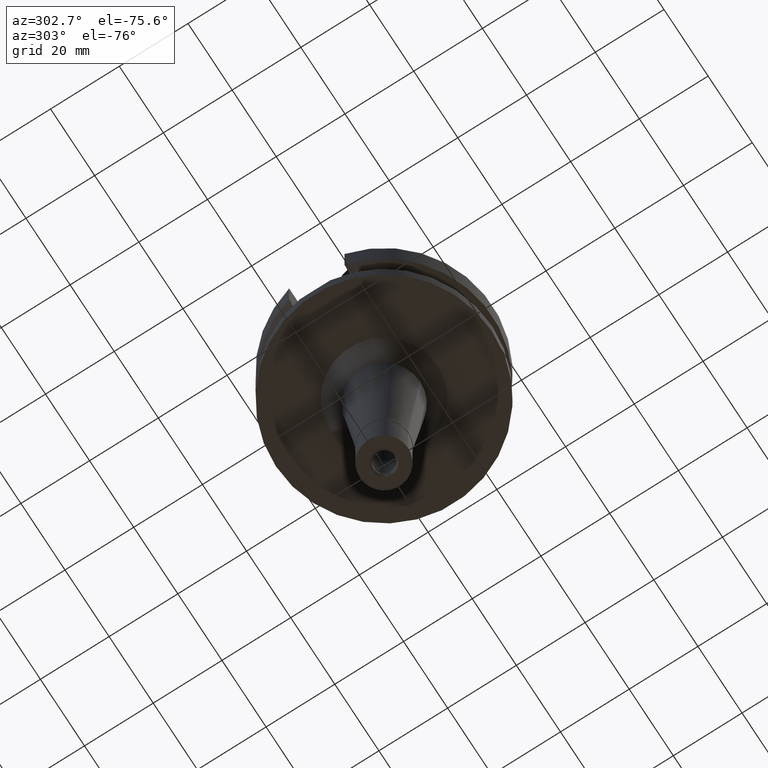
[diagram: clean part render]
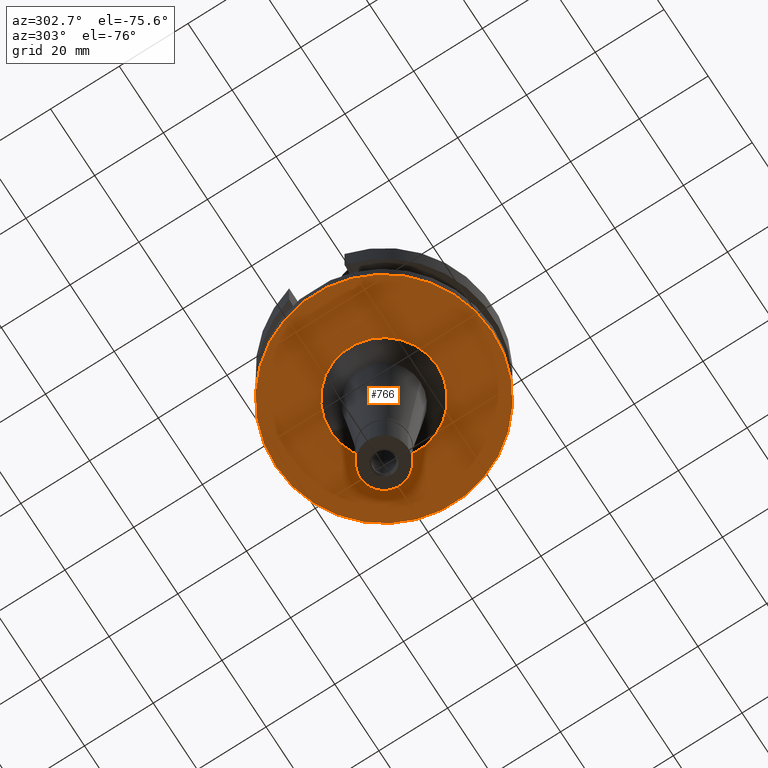
[diagram: same view with one face highlighted and labeled with its STEP entity id]
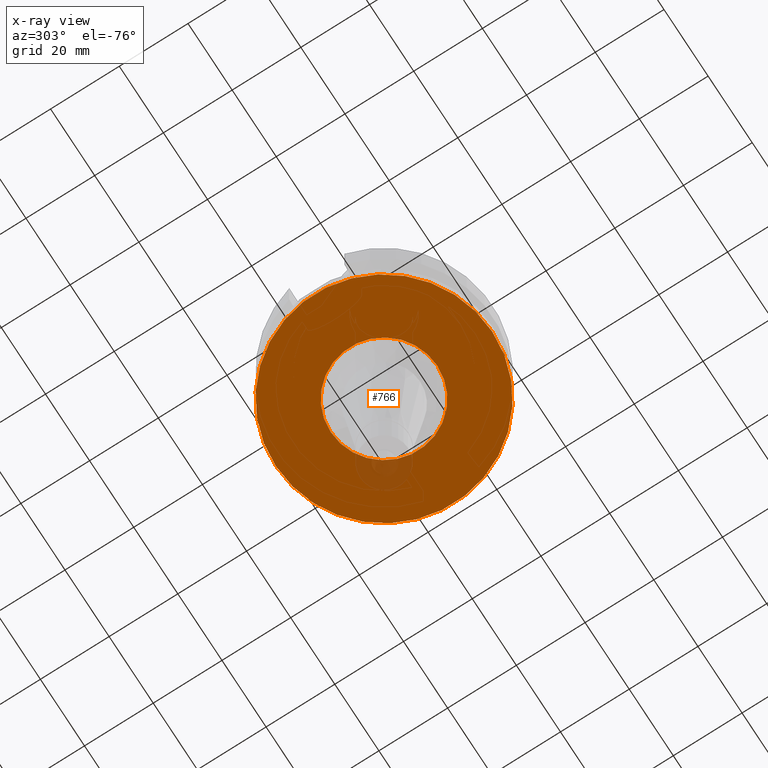
[diagram: x-ray of the same camera — body ghosted, the highlighted face saturated]
A machine part, auxiliary view. The second image highlights one B-rep face of the part: STEP entity #766.
The next image is the same camera in x-ray: the body ghosted, the highlighted face saturated — about 4% of this face is hidden behind the body in this view.
In plain terms, the highlighted planar face has unit normal (0, 0, -1).
Its self-contained STEP definition (entity closure, byte-faithful):
#98 = CIRCLE ( 'NONE', #1600, 31.50000000000000000 ) ;
#104 = CARTESIAN_POINT ( 'NONE',  ( 0.0000000000000000000, 0.0000000000000000000, -27.00000000000000000 ) ) ;
#137 = DIRECTION ( 'NONE',  ( 0.0000000000000000000, -1.000000000000000000, 0.0000000000000000000 ) ) ;
#165 = ORIENTED_EDGE ( 'NONE', *, *, #2258, .F. ) ;
#184 = CIRCLE ( 'NONE', #1635, 31.50000000000000000 ) ;
#338 = EDGE_CURVE ( 'NONE', #1518, #1916, #2350, .T. ) ;
#650 = FACE_OUTER_BOUND ( 'NONE', #1214, .T. ) ;
#766 = ADVANCED_FACE ( 'NONE', ( #650, #1772 ), #837, .T. ) ;
#783 = ORIENTED_EDGE ( 'NONE', *, *, #2130, .F. ) ;
#837 = PLANE ( 'NONE',  #2003 ) ;
#869 = CARTESIAN_POINT ( 'NONE',  ( 0.0000000000000000000, -15.52579314009000022, -27.00000000000000000 ) ) ;
#875 = DIRECTION ( 'NONE',  ( 0.0000000000000000000, 0.0000000000000000000, -1.000000000000000000 ) ) ;
#898 = DIRECTION ( 'NONE',  ( 0.0000000000000000000, 0.0000000000000000000, -1.000000000000000000 ) ) ;
#968 = DIRECTION ( 'NONE',  ( 0.0000000000000000000, 0.0000000000000000000, -1.000000000000000000 ) ) ;
#1049 = AXIS2_PLACEMENT_3D ( 'NONE', #104, #898, #1478 ) ;
#1214 = EDGE_LOOP ( 'NONE', ( #165, #1750 ) ) ;
#1478 = DIRECTION ( 'NONE',  ( 0.0000000000000000000, 1.000000000000000000, 0.0000000000000000000 ) ) ;
#1486 = AXIS2_PLACEMENT_3D ( 'NONE', #2120, #968, #1855 ) ;
#1501 = CARTESIAN_POINT ( 'NONE',  ( 0.0000000000000000000, 15.52579314009000022, -27.00000000000000000 ) ) ;
#1510 = EDGE_CURVE ( 'NONE', #2616, #2268, #98, .T. ) ;
#1518 = VERTEX_POINT ( 'NONE', #1501 ) ;
#1600 = AXIS2_PLACEMENT_3D ( 'NONE', #1947, #2232, #137 ) ;
#1635 = AXIS2_PLACEMENT_3D ( 'NONE', #2779, #2075, #2753 ) ;
#1676 = CIRCLE ( 'NONE', #1486, 15.52579314009000022 ) ;
#1750 = ORIENTED_EDGE ( 'NONE', *, *, #1510, .F. ) ;
#1772 = FACE_BOUND ( 'NONE', #2642, .T. ) ;
#1855 = DIRECTION ( 'NONE',  ( 0.0000000000000000000, -1.000000000000000000, 0.0000000000000000000 ) ) ;
#1916 = VERTEX_POINT ( 'NONE', #869 ) ;
#1947 = CARTESIAN_POINT ( 'NONE',  ( 0.0000000000000000000, 2.118271568485000005E-14, -27.00000000000000000 ) ) ;
#1964 = CARTESIAN_POINT ( 'NONE',  ( 0.0000000000000000000, 31.50000000000000000, -27.00000000000000000 ) ) ;
#1984 = ORIENTED_EDGE ( 'NONE', *, *, #338, .F. ) ;
#2003 = AXIS2_PLACEMENT_3D ( 'NONE', #2271, #875, #2688 ) ;
#2075 = DIRECTION ( 'NONE',  ( 0.0000000000000000000, 0.0000000000000000000, 1.000000000000000000 ) ) ;
#2120 = CARTESIAN_POINT ( 'NONE',  ( 0.0000000000000000000, 0.0000000000000000000, -27.00000000000000000 ) ) ;
#2130 = EDGE_CURVE ( 'NONE', #1916, #1518, #1676, .T. ) ;
#2232 = DIRECTION ( 'NONE',  ( 0.0000000000000000000, 0.0000000000000000000, 1.000000000000000000 ) ) ;
#2258 = EDGE_CURVE ( 'NONE', #2268, #2616, #184, .T. ) ;
#2268 = VERTEX_POINT ( 'NONE', #1964 ) ;
#2271 = CARTESIAN_POINT ( 'NONE',  ( 0.0000000000000000000, 0.0000000000000000000, -27.00000000000000000 ) ) ;
#2350 = CIRCLE ( 'NONE', #1049, 15.52579314009000022 ) ;
#2616 = VERTEX_POINT ( 'NONE', #2947 ) ;
#2642 = EDGE_LOOP ( 'NONE', ( #1984, #783 ) ) ;
#2688 = DIRECTION ( 'NONE',  ( 0.0000000000000000000, -1.000000000000000000, 0.0000000000000000000 ) ) ;
#2753 = DIRECTION ( 'NONE',  ( 0.0000000000000000000, 1.000000000000000000, 0.0000000000000000000 ) ) ;
#2779 = CARTESIAN_POINT ( 'NONE',  ( 0.0000000000000000000, 2.118271568485000005E-14, -27.00000000000000000 ) ) ;
#2947 = CARTESIAN_POINT ( 'NONE',  ( 0.0000000000000000000, -31.50000000000000000, -27.00000000000000000 ) ) ;